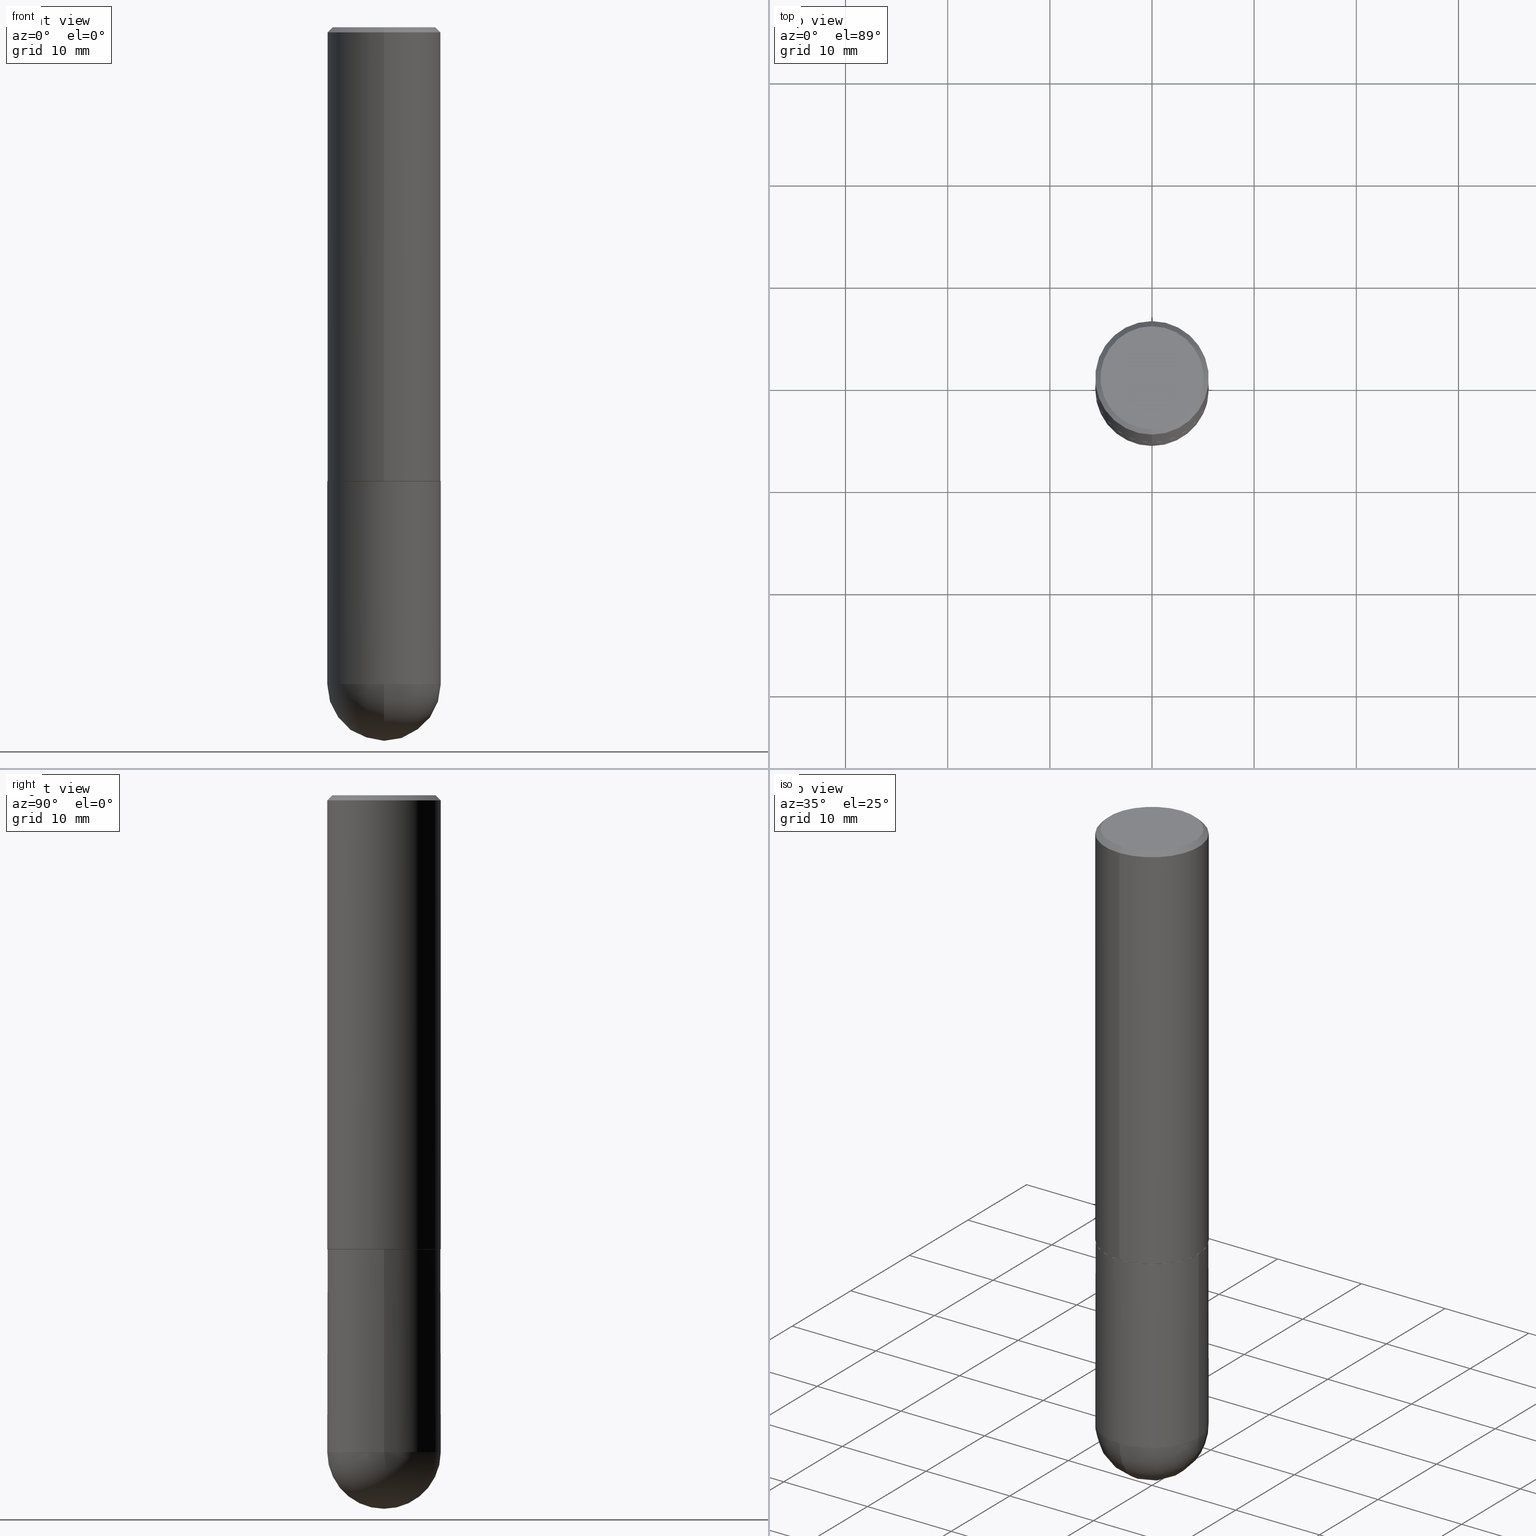
[diagram: canonical four-view strip — front | top / right | iso, engineering-drawing reading convention]
A machine part, canonical four-view strip (front | top / right | iso — engineering-drawing reading convention). The complete STEP part file that produces these views, byte-faithful:
ISO-10303-21;
HEADER;
FILE_DESCRIPTION (( 'STEP AP203' ),
    '1' );
FILE_NAME ('30058.STEP',
    '2024-02-21T16:34:55',
    ( '' ),
    ( '' ),
    'SwSTEP 2.0',
    'SolidWorks 2023',
    '' );
FILE_SCHEMA (( 'CONFIG_CONTROL_DESIGN' ));
ENDSEC;

DATA;
#1 = AXIS2_PLACEMENT_3D ( 'NONE', #151, #113, #218 ) ;
#2 = DIRECTION ( 'NONE',  ( -4.937700262164294818E-15, -0.7071067811865088260, 0.7071067811865862085 ) ) ;
#3 = AXIS2_PLACEMENT_3D ( 'NONE', #373, #24, #26 ) ;
#4 = EDGE_CURVE ( 'NONE', #174, #5, #78, .T. ) ;
#5 = VERTEX_POINT ( 'NONE', #121 ) ;
#6 = ORIENTED_EDGE ( 'NONE', *, *, #230, .T. ) ;
#7 = CIRCLE ( 'NONE', #86, 0.2187500000000002220 ) ;
#8 = APPROVAL_PERSON_ORGANIZATION ( #405, #224, #261 ) ;
#9 = VERTEX_POINT ( 'NONE', #85 ) ;
#10 = DIRECTION ( 'NONE',  ( 1.000000000000000000, -6.982962677686266711E-15, 4.876176775795935232E-29 ) ) ;
#11 = DIRECTION ( 'NONE',  ( -2.445468806185136597E-29, 3.491481338843145583E-15, 1.000000000000000000 ) ) ;
#12 = MECHANICAL_CONTEXT ( 'NONE', #221, 'mechanical' ) ;
#13 = ORIENTED_EDGE ( 'NONE', *, *, #335, .T. ) ;
#14 = DIRECTION ( 'NONE',  ( -6.982962677686265922E-15, -1.000000000000000000, 3.491919642402442968E-15 ) ) ;
#15 = COORDINATED_UNIVERSAL_TIME_OFFSET ( 5, 0, .BEHIND. ) ;
#16 = EDGE_LOOP ( 'NONE', ( #135, #228, #258, #39 ) ) ;
#17 = CIRCLE ( 'NONE', #95, 0.2187500000000000000 ) ;
#18 = DIRECTION ( 'NONE',  ( -2.445468806185136597E-29, 3.491481338843145583E-15, 1.000000000000000000 ) ) ;
#19 = APPROVAL_DATE_TIME ( #297, #224 ) ;
#20 = DIRECTION ( 'NONE',  ( -4.851104656540961908E-15, -0.7071067811865496822, -0.7071067811865453523 ) ) ;
#21 = FACE_OUTER_BOUND ( 'NONE', #133, .T. ) ;
#22 = CC_DESIGN_PERSON_AND_ORGANIZATION_ASSIGNMENT ( #395, #103, ( #266 ) ) ;
#23 = CARTESIAN_POINT ( 'NONE',  ( -1.463339128229030463E-45, 2.089784275229042036E-31, 5.984628769381613964E-17 ) ) ;
#24 = DIRECTION ( 'NONE',  ( 0.000000000000000000, 0.000000000000000000, 1.000000000000000000 ) ) ;
#25 = DIRECTION ( 'NONE',  ( 1.000000000000000000, -6.982962677686265133E-15, 0.000000000000000000 ) ) ;
#26 = DIRECTION ( 'NONE',  ( 1.000000000000000000, 0.000000000000000000, 0.000000000000000000 ) ) ;
#27 = DIRECTION ( 'NONE',  ( -2.445162740445529340E-29, 3.491919642402442968E-15, 1.000000000000000000 ) ) ;
#28 = ORGANIZATION ( 'UNSPECIFIED', 'UNSPECIFIED', '' ) ;
#29 = ORIENTED_EDGE ( 'NONE', *, *, #379, .T. ) ;
#30 = CC_DESIGN_PERSON_AND_ORGANIZATION_ASSIGNMENT ( #197, #171, ( #249 ) ) ;
#31 = CARTESIAN_POINT ( 'NONE',  ( -0.2187499999999999445, 1.554312234475218762E-15, -1.076017050993260482E-29 ) ) ;
#32 = DIRECTION ( 'NONE',  ( -1.000000000000000000, 7.105427357601001070E-15, -4.926315508542082329E-29 ) ) ;
#33 = AXIS2_PLACEMENT_3D ( 'NONE', #372, #181, #14 ) ;
#34 = ADVANCED_FACE ( 'NONE', ( #278 ), #156, .T. ) ;
#35 = AXIS2_PLACEMENT_3D ( 'NONE', #412, #312, #352 ) ;
#36 = AXIS2_PLACEMENT_3D ( 'NONE', #304, #332, #207 ) ;
#37 = EDGE_CURVE ( 'NONE', #9, #331, #256, .T. ) ;
#38 = ORIENTED_EDGE ( 'NONE', *, *, #63, .F. ) ;
#39 = ORIENTED_EDGE ( 'NONE', *, *, #98, .F. ) ;
#40 = AXIS2_PLACEMENT_3D ( 'NONE', #273, #260, #376 ) ;
#41 = CIRCLE ( 'NONE', #377, 0.2187499999999999445 ) ;
#42 = CARTESIAN_POINT ( 'NONE',  ( 0.2187499999999999445, -1.527523085743870449E-15, 1.066663669705360604E-29 ) ) ;
#43 = ORIENTED_EDGE ( 'NONE', *, *, #180, .T. ) ;
#44 = DIRECTION ( 'NONE',  ( 2.445162740445529340E-29, -3.491919642402442968E-15, -1.000000000000000000 ) ) ;
#45 = CARTESIAN_POINT ( 'NONE',  ( 1.547206807117660550E-15, 0.2177499999999938651, -1.750000000000001110 ) ) ;
#46 = APPLICATION_PROTOCOL_DEFINITION ( 'international standard', 'config_control_design', 1994, #221 ) ;
#47 = ORIENTED_EDGE ( 'NONE', *, *, #149, .T. ) ;
#48 = FACE_OUTER_BOUND ( 'NONE', #284, .T. ) ;
#49 = ORIENTED_EDGE ( 'NONE', *, *, #157, .F. ) ;
#50 = CIRCLE ( 'NONE', #92, 0.1987499999999999267 ) ;
#51 = LINE ( 'NONE', #42, #129 ) ;
#52 = DIRECTION ( 'NONE',  ( -2.445468806185136597E-29, 3.491481338843145583E-15, 1.000000000000000000 ) ) ;
#53 =( LENGTH_UNIT ( ) NAMED_UNIT ( * ) SI_UNIT ( $, .METRE. ) );
#54 = CYLINDRICAL_SURFACE ( 'NONE', #364, 0.2187499999999999445 ) ;
#55 = CYLINDRICAL_SURFACE ( 'NONE', #117, 0.2187500000000001388 ) ;
#56 = FACE_OUTER_BOUND ( 'NONE', #367, .T. ) ;
#57 = CARTESIAN_POINT ( 'NONE',  ( -1.527523085743871435E-15, -0.2187500000000001388, 7.638574217755348183E-16 ) ) ;
#58 = VERTEX_POINT ( 'NONE', #349 ) ;
#59 = ADVANCED_FACE ( 'NONE', ( #351 ), #409, .T. ) ;
#60 = ADVANCED_FACE ( 'NONE', ( #247 ), #265, .T. ) ;
#61 = AXIS2_PLACEMENT_3D ( 'NONE', #184, #248, #311 ) ;
#62 = LOCAL_TIME ( 11, 34, 55.00000000000000000, #366 ) ;
#63 = EDGE_CURVE ( 'NONE', #58, #5, #384, .T. ) ;
#64 = VECTOR ( 'NONE', #20, 39.37007874015748143 ) ;
#65 = ORIENTED_EDGE ( 'NONE', *, *, #168, .T. ) ;
#66 = ORIENTED_EDGE ( 'NONE', *, *, #168, .F. ) ;
#67 = VERTEX_POINT ( 'NONE', #240 ) ;
#68 = FACE_OUTER_BOUND ( 'NONE', #393, .T. ) ;
#69 = APPLICATION_PROTOCOL_DEFINITION ( 'international standard', 'config_control_design', 1994, #353 ) ;
#70 = EDGE_LOOP ( 'NONE', ( #231, #6 ) ) ;
#71 = AXIS2_PLACEMENT_3D ( 'NONE', #195, #11, #213 ) ;
#72 = PLANE ( 'NONE',  #317 ) ;
#73 = ORIENTED_EDGE ( 'NONE', *, *, #206, .F. ) ;
#74 = DIRECTION ( 'NONE',  ( 2.438088387897960049E-29, -3.491481338843145188E-15, -1.000000000000000000 ) ) ;
#75 = COORDINATED_UNIVERSAL_TIME_OFFSET ( 5, 0, .BEHIND. ) ;
#76 = ORIENTED_EDGE ( 'NONE', *, *, #37, .F. ) ;
#77 = FACE_OUTER_BOUND ( 'NONE', #371, .T. ) ;
#78 = CIRCLE ( 'NONE', #211, 0.2187500000000000278 ) ;
#79 = CARTESIAN_POINT ( 'NONE',  ( 4.279034795779677116E-29, -6.110859374204276180E-15, -1.750000000000000222 ) ) ;
#80 = CONICAL_SURFACE ( 'NONE', #132, 0.2187500000000000278, 0.7853981633974479459 ) ;
#81 = DIRECTION ( 'NONE',  ( 1.000000000000000000, -6.982962677686267499E-15, 0.000000000000000000 ) ) ;
#82 = DATE_AND_TIME ( #137, #131 ) ;
#83 = LINE ( 'NONE', #31, #321 ) ;
#84 = CARTESIAN_POINT ( 'NONE',  ( 1.457693458967008136E-15, 0.1987499999999999267, -6.341727412336692065E-16 ) ) ;
#85 = CARTESIAN_POINT ( 'NONE',  ( 1.550759520796462040E-15, 0.2177499999999938651, -1.750000000000001110 ) ) ;
#86 = AXIS2_PLACEMENT_3D ( 'NONE', #314, #275, #187 ) ;
#87 = LOCAL_TIME ( 11, 34, 55.00000000000000000, #75 ) ;
#88 = DIMENSIONAL_EXPONENTS ( 1.000000000000000000, 0.000000000000000000, 0.000000000000000000, 0.000000000000000000, 0.000000000000000000, 0.000000000000000000, 0.000000000000000000 ) ;
#89 = SHAPE_DEFINITION_REPRESENTATION ( #119, #285 ) ;
#90 = EDGE_CURVE ( 'NONE', #91, #174, #145, .T. ) ;
#91 = VERTEX_POINT ( 'NONE', #272 ) ;
#92 = AXIS2_PLACEMENT_3D ( 'NONE', #23, #369, #229 ) ;
#93 = CIRCLE ( 'NONE', #33, 0.1987499999999999267 ) ;
#94 = ADVANCED_FACE ( 'NONE', ( #402 ), #179, .T. ) ;
#95 = AXIS2_PLACEMENT_3D ( 'NONE', #329, #177, #143 ) ;
#96 = ORIENTED_EDGE ( 'NONE', *, *, #335, .F. ) ;
#97 = VERTEX_POINT ( 'NONE', #374 ) ;
#98 = EDGE_CURVE ( 'NONE', #396, #5, #120, .T. ) ;
#99 = DIRECTION ( 'NONE',  ( -2.445162740445529340E-29, 3.491919642402442968E-15, 1.000000000000000000 ) ) ;
#100 = ORIENTED_EDGE ( 'NONE', *, *, #403, .F. ) ;
#101 = CARTESIAN_POINT ( 'NONE',  ( 0.2187500000000000000, -7.637615428719375514E-15, -1.750000000000000000 ) ) ;
#102 = CARTESIAN_POINT ( 'NONE',  ( 4.890325480891071152E-31, -6.983839284804902847E-17, -0.02000000000000005246 ) ) ;
#103 = PERSON_AND_ORGANIZATION_ROLE ( 'classification_officer' ) ;
#104 = ORIENTED_EDGE ( 'NONE', *, *, #63, .T. ) ;
#105 = AXIS2_PLACEMENT_3D ( 'NONE', #315, #32, #158 ) ;
#106 = CONICAL_SURFACE ( 'NONE', #318, 0.2177499999999999991, 0.7853981633973970977 ) ;
#107 = PRODUCT_RELATED_PRODUCT_CATEGORY ( 'detail', '', ( #182 ) ) ;
#108 = DIRECTION ( 'NONE',  ( 5.024295867787803643E-15, 0.7071067811865135999, 0.7071067811865812125 ) ) ;
#109 = APPROVAL_STATUS ( 'not_yet_approved' ) ;
#110 = EDGE_CURVE ( 'NONE', #254, #268, #301, .T. ) ;
#111 = ORIENTED_EDGE ( 'NONE', *, *, #269, .T. ) ;
#112 = CARTESIAN_POINT ( 'NONE',  ( 6.190092915656127011E-29, -8.837812138946710888E-15, -2.531250000000000000 ) ) ;
#113 = DIRECTION ( 'NONE',  ( -1.000000000000000000, 6.982962677686265922E-15, -4.883557194083112340E-29 ) ) ;
#114 = CARTESIAN_POINT ( 'NONE',  ( 0.2187499999999999445, -9.001475326704980594E-15, -2.531250000000000000 ) ) ;
#115 = APPROVAL_STATUS ( 'not_yet_approved' ) ;
#116 = DIRECTION ( 'NONE',  ( -2.445468806185136877E-29, 3.491481338843145188E-15, 1.000000000000000000 ) ) ;
#117 = AXIS2_PLACEMENT_3D ( 'NONE', #348, #380, #148 ) ;
#118 = APPROVAL_PERSON_ORGANIZATION ( #144, #246, #150 ) ;
#119 = PRODUCT_DEFINITION_SHAPE ( 'NONE', 'NONE',  #249 ) ;
#120 = LINE ( 'NONE', #57, #251 ) ;
#121 = CARTESIAN_POINT ( 'NONE',  ( -1.500733937012521938E-15, -0.2187500000000000833, -0.01999999999999928571 ) ) ;
#122 = DIRECTION ( 'NONE',  ( -6.982962677686265922E-15, -1.000000000000000000, 3.492862791899307676E-15 ) ) ;
#123 = CARTESIAN_POINT ( 'NONE',  ( 4.890325480891071152E-31, -6.983839284804902847E-17, -0.02000000000000005246 ) ) ;
#124 = CIRCLE ( 'NONE', #328, 0.2177499999999999991 ) ;
#125 = ADVANCED_FACE ( 'NONE', ( #77 ), #55, .T. ) ;
#126 = CIRCLE ( 'NONE', #175, 0.2187500000000000000 ) ;
#127 = LOCAL_TIME ( 11, 34, 55.00000000000000000, #201 ) ;
#128 = VERTEX_POINT ( 'NONE', #84 ) ;
#129 = VECTOR ( 'NONE', #167, 39.37007874015748143 ) ;
#130 = ADVANCED_FACE ( 'NONE', ( #56 ), #385, .T. ) ;
#131 = LOCAL_TIME ( 11, 34, 55.00000000000000000, #293 ) ;
#132 = AXIS2_PLACEMENT_3D ( 'NONE', #123, #44, #166 ) ;
#133 = EDGE_LOOP ( 'NONE', ( #400, #194, #73, #66 ) ) ;
#134 = CYLINDRICAL_SURFACE ( 'NONE', #220, 0.2187499999999999445 ) ;
#135 = ORIENTED_EDGE ( 'NONE', *, *, #206, .T. ) ;
#136 = DIRECTION ( 'NONE',  ( 1.000000000000000000, -6.982962677686266711E-15, 4.876176775795935232E-29 ) ) ;
#137 = CALENDAR_DATE ( 2024, 21, 2 ) ;
#138 = EDGE_LOOP ( 'NONE', ( #319, #104, #198, #358 ) ) ;
#139 = CC_DESIGN_PERSON_AND_ORGANIZATION_ASSIGNMENT ( #242, #378, ( #390 ) ) ;
#140 = DATE_AND_TIME ( #334, #62 ) ;
#141 = ORIENTED_EDGE ( 'NONE', *, *, #316, .F. ) ;
#142 = APPROVAL_PERSON_ORGANIZATION ( #399, #382, #370 ) ;
#143 = DIRECTION ( 'NONE',  ( 1.000000000000000000, -6.982962677686267499E-15, 0.000000000000000000 ) ) ;
#144 = PERSON_AND_ORGANIZATION ( #159, #28 ) ;
#145 = LINE ( 'NONE', #243, #233 ) ;
#146 = DIRECTION ( 'NONE',  ( 1.000000000000000000, -6.982962677686265922E-15, 4.883557194083112340E-29 ) ) ;
#147 = CARTESIAN_POINT ( 'NONE',  ( 1.387863832190144838E-15, 0.1987499999999999267, -6.640958850805772455E-16 ) ) ;
#148 = DIRECTION ( 'NONE',  ( -6.982962677686265133E-15, -1.000000000000000000, 3.491919642402442574E-15 ) ) ;
#149 = EDGE_CURVE ( 'NONE', #91, #396, #7, .T. ) ;
#150 = APPROVAL_ROLE ( '' ) ;
#151 = CARTESIAN_POINT ( 'NONE',  ( 5.858973137742240763E-29, -9.311994507086761184E-15, -2.531250000000000000 ) ) ;
#152 = CLOSED_SHELL ( 'NONE', ( #359, #59, #94, #324, #286 ) ) ;
#153 = VECTOR ( 'NONE', #340, 39.37007874015748143 ) ;
#154 = CARTESIAN_POINT ( 'NONE',  ( 4.890325480891071152E-31, -6.983839284804902847E-17, -0.02000000000000005246 ) ) ;
#155 = LINE ( 'NONE', #45, #408 ) ;
#156 = CYLINDRICAL_SURFACE ( 'NONE', #326, 0.2187500000000001388 ) ;
#157 = EDGE_CURVE ( 'NONE', #254, #257, #83, .T. ) ;
#158 = DIRECTION ( 'NONE',  ( -7.105427357601001070E-15, -1.000000000000000000, 0.000000000000000000 ) ) ;
#159 = PERSON ( 'UNSPECIFIED', 'UNSPECIFIED', 'UNSPECIFIED', ('UNSPECIFIED'), ('UNSPECIFIED'), ('UNSPECIFIED') ) ;
#160 = ORIENTED_EDGE ( 'NONE', *, *, #365, .F. ) ;
#161 = CIRCLE ( 'NONE', #219, 0.2187500000000000278 ) ;
#162 = ORIENTED_EDGE ( 'NONE', *, *, #4, .T. ) ;
#163 = VECTOR ( 'NONE', #2, 39.37007874015748143 ) ;
#164 = EDGE_LOOP ( 'NONE', ( #169, #29, #336, #96 ) ) ;
#165 = MANIFOLD_SOLID_BREP ( 'Body-Move/Copy2[2]', #389 ) ;
#166 = DIRECTION ( 'NONE',  ( 6.982962677686265922E-15, 1.000000000000000000, -3.492862791899307676E-15 ) ) ;
#167 = DIRECTION ( 'NONE',  ( -2.445468806185136877E-29, 3.491481338843145188E-15, 1.000000000000000000 ) ) ;
#168 = EDGE_CURVE ( 'NONE', #331, #396, #215, .T. ) ;
#169 = ORIENTED_EDGE ( 'NONE', *, *, #180, .F. ) ;
#170 = DIRECTION ( 'NONE',  ( -2.445468806185136597E-29, 3.491481338843145583E-15, 1.000000000000000000 ) ) ;
#171 = PERSON_AND_ORGANIZATION_ROLE ( 'creator' ) ;
#172 = ORIENTED_EDGE ( 'NONE', *, *, #110, .F. ) ;
#173 =( NAMED_UNIT ( * ) PLANE_ANGLE_UNIT ( ) SI_UNIT ( $, .RADIAN. ) );
#174 = VERTEX_POINT ( 'NONE', #190 ) ;
#175 = AXIS2_PLACEMENT_3D ( 'NONE', #296, #170, #81 ) ;
#176 = DIRECTION ( 'NONE',  ( -2.445468806185136597E-29, 3.491481338843145583E-15, 1.000000000000000000 ) ) ;
#177 = DIRECTION ( 'NONE',  ( -2.445468806185136597E-29, 3.491481338843145583E-15, 1.000000000000000000 ) ) ;
#178 = PERSON_AND_ORGANIZATION_ROLE ( 'design_owner' ) ;
#179 = SPHERICAL_SURFACE ( 'NONE', #1, 0.2187500000000001943 ) ;
#180 = EDGE_CURVE ( 'NONE', #97, #268, #383, .T. ) ;
#181 = DIRECTION ( 'NONE',  ( -2.445162740445529340E-29, 3.491919642402442968E-15, 1.000000000000000000 ) ) ;
#182 = PRODUCT ( '30058', '30058', '', ( #12 ) ) ;
#183 = DATE_TIME_ROLE ( 'creation_date' ) ;
#184 = CARTESIAN_POINT ( 'NONE',  ( 4.890325480891071152E-31, -6.983839284804902847E-17, -0.02000000000000005246 ) ) ;
#185 = CARTESIAN_POINT ( 'NONE',  ( 0.000000000000000000, 0.000000000000000000, 0.000000000000000000 ) ) ;
#186 =( GEOMETRIC_REPRESENTATION_CONTEXT ( 3 ) GLOBAL_UNCERTAINTY_ASSIGNED_CONTEXT ( ( #360 ) ) GLOBAL_UNIT_ASSIGNED_CONTEXT ( ( #214, #173, #209 ) ) REPRESENTATION_CONTEXT ( 'NONE', 'WORKASPACE' ) );
#187 = DIRECTION ( 'NONE',  ( -6.982962677686265922E-15, -1.000000000000000000, 3.746534391310985612E-15 ) ) ;
#188 = CC_DESIGN_DATE_AND_TIME_ASSIGNMENT ( #274, #183, ( #249 ) ) ;
#189 = EDGE_CURVE ( 'NONE', #9, #91, #155, .T. ) ;
#190 = CARTESIAN_POINT ( 'NONE',  ( 1.527523085743871237E-15, 0.2187499999999999445, -0.02000000000000081574 ) ) ;
#191 = CIRCLE ( 'NONE', #36, 0.2187499999999999445 ) ;
#192 = ORIENTED_EDGE ( 'NONE', *, *, #212, .F. ) ;
#193 = ORIENTED_EDGE ( 'NONE', *, *, #403, .T. ) ;
#194 = ORIENTED_EDGE ( 'NONE', *, *, #189, .T. ) ;
#195 = CARTESIAN_POINT ( 'NONE',  ( 6.190092915656127011E-29, -8.837812138946710888E-15, -2.531250000000000000 ) ) ;
#196 = AXIS2_PLACEMENT_3D ( 'NONE', #341, #99, #362 ) ;
#197 = PERSON_AND_ORGANIZATION ( #159, #28 ) ;
#198 = ORIENTED_EDGE ( 'NONE', *, *, #290, .T. ) ;
#199 = DIRECTION ( 'NONE',  ( 6.982962677686265922E-15, 1.000000000000000000, 0.000000000000000000 ) ) ;
#200 = DIRECTION ( 'NONE',  ( -2.445468806185136597E-29, 3.491481338843145583E-15, 1.000000000000000000 ) ) ;
#201 = COORDINATED_UNIVERSAL_TIME_OFFSET ( 5, 0, .BEHIND. ) ;
#202 = ORIENTED_EDGE ( 'NONE', *, *, #379, .F. ) ;
#203 = DIRECTION ( 'NONE',  ( -1.000000000000000000, 6.982962677686265922E-15, -4.876176775795935793E-29 ) ) ;
#204 = CALENDAR_DATE ( 2024, 21, 2 ) ;
#205 = ORIENTED_EDGE ( 'NONE', *, *, #110, .T. ) ;
#206 = EDGE_CURVE ( 'NONE', #396, #91, #223, .T. ) ;
#207 = DIRECTION ( 'NONE',  ( 1.000000000000000000, -6.982962677686265133E-15, 0.000000000000000000 ) ) ;
#208 = DIRECTION ( 'NONE',  ( -6.982962677686265922E-15, -1.000000000000000000, 3.492862791899307676E-15 ) ) ;
#209 =( NAMED_UNIT ( * ) SI_UNIT ( $, .STERADIAN. ) SOLID_ANGLE_UNIT ( ) );
#210 = CARTESIAN_POINT ( 'NONE',  ( 4.279034795779677116E-29, -6.110859374204276180E-15, -1.750000000000000222 ) ) ;
#211 = AXIS2_PLACEMENT_3D ( 'NONE', #154, #27, #122 ) ;
#212 = EDGE_CURVE ( 'NONE', #257, #391, #17, .T. ) ;
#213 = DIRECTION ( 'NONE',  ( 1.000000000000000000, -6.982962677686265133E-15, 0.000000000000000000 ) ) ;
#214 =( CONVERSION_BASED_UNIT ( 'INCH', #238 ) LENGTH_UNIT ( ) NAMED_UNIT ( #88 ) );
#215 = LINE ( 'NONE', #281, #163 ) ;
#216 = CARTESIAN_POINT ( 'NONE',  ( 6.190092915656127011E-29, -8.837812138946710888E-15, -2.531250000000000000 ) ) ;
#217 = CC_DESIGN_PERSON_AND_ORGANIZATION_ASSIGNMENT ( #347, #234, ( #390 ) ) ;
#218 = DIRECTION ( 'NONE',  ( 6.982962677686265922E-15, 1.000000000000000000, -2.497689594207324005E-15 ) ) ;
#219 = AXIS2_PLACEMENT_3D ( 'NONE', #102, #333, #208 ) ;
#220 = AXIS2_PLACEMENT_3D ( 'NONE', #295, #176, #10 ) ;
#221 = APPLICATION_CONTEXT ( 'configuration controlled 3d designs of mechanical parts and assemblies' ) ;
#222 = DIRECTION ( 'NONE',  ( -2.445162740445529340E-29, 3.491919642402442968E-15, 1.000000000000000000 ) ) ;
#223 = CIRCLE ( 'NONE', #40, 0.2187500000000002220 ) ;
#224 = APPROVAL ( #115, 'UNSPECIFIED' ) ;
#225 = AXIS2_PLACEMENT_3D ( 'NONE', #210, #381, #344 ) ;
#226 = AXIS2_PLACEMENT_3D ( 'NONE', #398, #74, #203 ) ;
#227 = VERTEX_POINT ( 'NONE', #114 ) ;
#228 = ORIENTED_EDGE ( 'NONE', *, *, #90, .T. ) ;
#229 = DIRECTION ( 'NONE',  ( -6.982962677686265922E-15, -1.000000000000000000, 3.491919642402442968E-15 ) ) ;
#230 = EDGE_CURVE ( 'NONE', #58, #128, #50, .T. ) ;
#231 = ORIENTED_EDGE ( 'NONE', *, *, #316, .T. ) ;
#232 = CARTESIAN_POINT ( 'NONE',  ( -1.554312234475159203E-15, -0.2187500000000091871, -2.531249999999999556 ) ) ;
#233 = VECTOR ( 'NONE', #407, 39.37007874015748143 ) ;
#234 = PERSON_AND_ORGANIZATION_ROLE ( 'creator' ) ;
#235 = ORIENTED_EDGE ( 'NONE', *, *, #299, .T. ) ;
#236 = ORIENTED_EDGE ( 'NONE', *, *, #282, .F. ) ;
#237 = DIRECTION ( 'NONE',  ( 1.000000000000000000, -6.982962677686265133E-15, 0.000000000000000000 ) ) ;
#238 = LENGTH_MEASURE_WITH_UNIT ( LENGTH_MEASURE( 0.02539999999999999897 ), #53 );
#239 = CC_DESIGN_DATE_AND_TIME_ASSIGNMENT ( #140, #271, ( #266 ) ) ;
#240 = CARTESIAN_POINT ( 'NONE',  ( 1.527523085743931191E-15, 0.2187499999999910072, -2.531250000000000444 ) ) ;
#241 = DIRECTION ( 'NONE',  ( 2.445162740445529340E-29, -3.491919642402442968E-15, -1.000000000000000000 ) ) ;
#242 = PERSON_AND_ORGANIZATION ( #159, #28 ) ;
#243 = CARTESIAN_POINT ( 'NONE',  ( 1.554312234475219748E-15, 0.2187500000000001388, -7.638574217755348183E-16 ) ) ;
#244 = CC_DESIGN_APPROVAL ( #224, ( #390 ) ) ;
#245 = DIRECTION ( 'NONE',  ( -2.445162740445529340E-29, 3.491919642402442968E-15, 1.000000000000000000 ) ) ;
#246 = APPROVAL ( #267, 'UNSPECIFIED' ) ;
#247 = FACE_OUTER_BOUND ( 'NONE', #138, .T. ) ;
#248 = DIRECTION ( 'NONE',  ( 2.445162740445529340E-29, -3.491919642402442968E-15, -1.000000000000000000 ) ) ;
#249 = PRODUCT_DEFINITION ( 'UNKNOWN', '', #390, #387 ) ;
#250 = ORIENTED_EDGE ( 'NONE', *, *, #90, .F. ) ;
#251 = VECTOR ( 'NONE', #245, 39.37007874015748143 ) ;
#252 = CC_DESIGN_APPROVAL ( #382, ( #266 ) ) ;
#253 = ADVANCED_FACE ( 'NONE', ( #48 ), #392, .F. ) ;
#254 = VERTEX_POINT ( 'NONE', #270 ) ;
#255 = CIRCLE ( 'NONE', #71, 0.2187499999999999445 ) ;
#256 = CIRCLE ( 'NONE', #375, 0.2177499999999999991 ) ;
#257 = VERTEX_POINT ( 'NONE', #404 ) ;
#258 = ORIENTED_EDGE ( 'NONE', *, *, #290, .F. ) ;
#259 = DIRECTION ( 'NONE',  ( -2.445162740445529340E-29, 3.491919642402442968E-15, 1.000000000000000000 ) ) ;
#260 = DIRECTION ( 'NONE',  ( -2.445162740445529340E-29, 3.491919642402442968E-15, 1.000000000000000000 ) ) ;
#261 = APPROVAL_ROLE ( '' ) ;
#262 = EDGE_LOOP ( 'NONE', ( #202, #43, #172, #100 ) ) ;
#263 = DIRECTION ( 'NONE',  ( -6.982962677686265922E-15, -1.000000000000000000, 3.763740060157423393E-15 ) ) ;
#264 = FACE_OUTER_BOUND ( 'NONE', #356, .T. ) ;
#265 = CONICAL_SURFACE ( 'NONE', #61, 0.2187500000000000278, 0.7853981633974479459 ) ;
#266 = SECURITY_CLASSIFICATION ( '', '', #310 ) ;
#267 = APPROVAL_STATUS ( 'not_yet_approved' ) ;
#268 = VERTEX_POINT ( 'NONE', #232 ) ;
#269 = EDGE_CURVE ( 'NONE', #227, #67, #255, .T. ) ;
#270 = CARTESIAN_POINT ( 'NONE',  ( -0.2187499999999999445, -5.919640006485891384E-15, -2.531250000000000000 ) ) ;
#271 = DATE_TIME_ROLE ( 'classification_date' ) ;
#272 = CARTESIAN_POINT ( 'NONE',  ( 1.554312234475241639E-15, 0.2187499999999941158, -1.749000000000000554 ) ) ;
#273 = CARTESIAN_POINT ( 'NONE',  ( 4.276589633039230650E-29, -6.107367454561872318E-15, -1.748999999999999888 ) ) ;
#274 = DATE_AND_TIME ( #330, #127 ) ;
#275 = DIRECTION ( 'NONE',  ( -2.445162740445529340E-29, 3.491919642402442968E-15, 1.000000000000000000 ) ) ;
#276 = CARTESIAN_POINT ( 'NONE',  ( 4.279034795779677116E-29, -6.110859374204276180E-15, -1.750000000000000222 ) ) ;
#277 = CIRCLE ( 'NONE', #287, 0.2187500000000001943 ) ;
#278 = FACE_OUTER_BOUND ( 'NONE', #16, .T. ) ;
#279 = DIRECTION ( 'NONE',  ( -6.982962677686265133E-15, -1.000000000000000000, 3.491919642402442574E-15 ) ) ;
#280 = ADVANCED_FACE ( 'NONE', ( #309 ), #72, .F. ) ;
#281 = CARTESIAN_POINT ( 'NONE',  ( -1.520540123066141639E-15, -0.2177500000000061053, -1.749999999999999334 ) ) ;
#282 = EDGE_CURVE ( 'NONE', #227, #391, #51, .T. ) ;
#283 = APPROVAL_DATE_TIME ( #338, #382 ) ;
#284 = EDGE_LOOP ( 'NONE', ( #160, #76 ) ) ;
#285 = ADVANCED_BREP_SHAPE_REPRESENTATION ( '30058', ( #313, #165, #3 ), #186 ) ;
#286 = ADVANCED_FACE ( 'NONE', ( #346 ), #54, .T. ) ;
#287 = AXIS2_PLACEMENT_3D ( 'NONE', #394, #146, #199 ) ;
#288 = ORIENTED_EDGE ( 'NONE', *, *, #149, .F. ) ;
#289 = CC_DESIGN_SECURITY_CLASSIFICATION ( #266, ( #390 ) ) ;
#290 = EDGE_CURVE ( 'NONE', #5, #174, #161, .T. ) ;
#291 = ORIENTED_EDGE ( 'NONE', *, *, #282, .T. ) ;
#292 = CARTESIAN_POINT ( 'NONE',  ( 0.000000000000000000, 0.000000000000000000, 0.000000000000000000 ) ) ;
#293 = COORDINATED_UNIVERSAL_TIME_OFFSET ( 5, 0, .BEHIND. ) ;
#294 = ORIENTED_EDGE ( 'NONE', *, *, #4, .F. ) ;
#295 = CARTESIAN_POINT ( 'NONE',  ( 0.000000000000000000, 0.000000000000000000, 0.000000000000000000 ) ) ;
#296 = CARTESIAN_POINT ( 'NONE',  ( 4.279570410823988484E-29, -6.110092342975504671E-15, -1.750000000000000000 ) ) ;
#297 = DATE_AND_TIME ( #302, #322 ) ;
#298 = ORIENTED_EDGE ( 'NONE', *, *, #98, .T. ) ;
#299 = EDGE_CURVE ( 'NONE', #391, #257, #126, .T. ) ;
#300 = CARTESIAN_POINT ( 'NONE',  ( 1.527523085743871237E-15, 0.2187499999999999445, -0.02000000000000081574 ) ) ;
#301 = CIRCLE ( 'NONE', #357, 0.2187499999999999445 ) ;
#302 = CALENDAR_DATE ( 2024, 21, 2 ) ;
#303 = CARTESIAN_POINT ( 'NONE',  ( -1.500733937012521938E-15, -0.2187500000000000833, -0.01999999999999928571 ) ) ;
#304 = CARTESIAN_POINT ( 'NONE',  ( 6.190092915656127011E-29, -8.837812138946710888E-15, -2.531250000000000000 ) ) ;
#305 = DIRECTION ( 'NONE',  ( 6.982962677686265922E-15, 1.000000000000000000, -3.491919642402442968E-15 ) ) ;
#306 = APPROVAL_DATE_TIME ( #82, #246 ) ;
#307 = DIRECTION ( 'NONE',  ( -6.982962677686265922E-15, -1.000000000000000000, 3.763740060157423393E-15 ) ) ;
#308 = DIRECTION ( 'NONE',  ( -2.445162740445529340E-29, 3.491919642402442968E-15, 1.000000000000000000 ) ) ;
#309 = FACE_OUTER_BOUND ( 'NONE', #70, .T. ) ;
#310 = SECURITY_CLASSIFICATION_LEVEL ( 'unclassified' ) ;
#311 = DIRECTION ( 'NONE',  ( 6.982962677686265922E-15, 1.000000000000000000, -3.492862791899307676E-15 ) ) ;
#312 = DIRECTION ( 'NONE',  ( -1.000000000000000000, 6.982962677686265922E-15, -4.883557194083112340E-29 ) ) ;
#313 = MANIFOLD_SOLID_BREP ( 'Body-Move/Copy2[1]', #152 ) ;
#314 = CARTESIAN_POINT ( 'NONE',  ( 4.276589633039230650E-29, -6.107367454561872318E-15, -1.748999999999999888 ) ) ;
#315 = CARTESIAN_POINT ( 'NONE',  ( 5.858973137742240763E-29, -9.311994507086761184E-15, -2.531250000000000000 ) ) ;
#316 = EDGE_CURVE ( 'NONE', #128, #58, #93, .T. ) ;
#317 = AXIS2_PLACEMENT_3D ( 'NONE', #147, #241, #305 ) ;
#318 = AXIS2_PLACEMENT_3D ( 'NONE', #79, #308, #345 ) ;
#319 = ORIENTED_EDGE ( 'NONE', *, *, #230, .F. ) ;
#320 = CC_DESIGN_PERSON_AND_ORGANIZATION_ASSIGNMENT ( #343, #178, ( #182 ) ) ;
#321 = VECTOR ( 'NONE', #116, 39.37007874015748143 ) ;
#322 = LOCAL_TIME ( 11, 34, 55.00000000000000000, #15 ) ;
#323 = ORIENTED_EDGE ( 'NONE', *, *, #37, .T. ) ;
#324 = ADVANCED_FACE ( 'NONE', ( #264 ), #401, .F. ) ;
#325 = ORIENTED_EDGE ( 'NONE', *, *, #212, .T. ) ;
#326 = AXIS2_PLACEMENT_3D ( 'NONE', #185, #222, #279 ) ;
#327 = CARTESIAN_POINT ( 'NONE',  ( 4.279034795779677116E-29, -6.110859374204276180E-15, -1.750000000000000222 ) ) ;
#328 = AXIS2_PLACEMENT_3D ( 'NONE', #327, #259, #263 ) ;
#329 = CARTESIAN_POINT ( 'NONE',  ( 4.279570410823988484E-29, -6.110092342975504671E-15, -1.750000000000000000 ) ) ;
#330 = CALENDAR_DATE ( 2024, 21, 2 ) ;
#331 = VERTEX_POINT ( 'NONE', #337 ) ;
#332 = DIRECTION ( 'NONE',  ( -2.445468806185136597E-29, 3.491481338843145583E-15, 1.000000000000000000 ) ) ;
#333 = DIRECTION ( 'NONE',  ( -2.445162740445529340E-29, 3.491919642402442968E-15, 1.000000000000000000 ) ) ;
#334 = CALENDAR_DATE ( 2024, 21, 2 ) ;
#335 = EDGE_CURVE ( 'NONE', #268, #227, #41, .T. ) ;
#336 = ORIENTED_EDGE ( 'NONE', *, *, #269, .F. ) ;
#337 = CARTESIAN_POINT ( 'NONE',  ( -1.520540123066141639E-15, -0.2177500000000061053, -1.749999999999999334 ) ) ;
#338 = DATE_AND_TIME ( #204, #87 ) ;
#339 = EDGE_LOOP ( 'NONE', ( #49, #205, #13, #291, #192 ) ) ;
#340 = DIRECTION ( 'NONE',  ( 4.937700262164545676E-15, 0.7071067811865447972, -0.7071067811865502373 ) ) ;
#341 = CARTESIAN_POINT ( 'NONE',  ( 4.279034795779677116E-29, -6.110859374204276180E-15, -1.750000000000000222 ) ) ;
#342 = CC_DESIGN_APPROVAL ( #246, ( #249 ) ) ;
#343 = PERSON_AND_ORGANIZATION ( #159, #28 ) ;
#344 = DIRECTION ( 'NONE',  ( -6.982962677686265922E-15, -1.000000000000000000, 3.763740060157423393E-15 ) ) ;
#345 = DIRECTION ( 'NONE',  ( -6.982962677686265922E-15, -1.000000000000000000, 3.763740060157423393E-15 ) ) ;
#346 = FACE_OUTER_BOUND ( 'NONE', #339, .T. ) ;
#347 = PERSON_AND_ORGANIZATION ( #159, #28 ) ;
#348 = CARTESIAN_POINT ( 'NONE',  ( 0.000000000000000000, 0.000000000000000000, 0.000000000000000000 ) ) ;
#349 = CARTESIAN_POINT ( 'NONE',  ( -1.432128957034806803E-15, -0.1987499999999999267, 7.538653166213014611E-16 ) ) ;
#350 = FACE_OUTER_BOUND ( 'NONE', #363, .T. ) ;
#351 = FACE_OUTER_BOUND ( 'NONE', #262, .T. ) ;
#352 = DIRECTION ( 'NONE',  ( 6.982962677686265922E-15, 1.000000000000000000, -2.497689594207324005E-15 ) ) ;
#353 = APPLICATION_CONTEXT ( 'configuration controlled 3d designs of mechanical parts and assemblies' ) ;
#354 = ADVANCED_FACE ( 'NONE', ( #350 ), #80, .T. ) ;
#355 = ORIENTED_EDGE ( 'NONE', *, *, #189, .F. ) ;
#356 = EDGE_LOOP ( 'NONE', ( #235, #325 ) ) ;
#357 = AXIS2_PLACEMENT_3D ( 'NONE', #216, #52, #25 ) ;
#358 = ORIENTED_EDGE ( 'NONE', *, *, #406, .F. ) ;
#359 = ADVANCED_FACE ( 'NONE', ( #68 ), #134, .T. ) ;
#360 = UNCERTAINTY_MEASURE_WITH_UNIT (LENGTH_MEASURE( 1.000000000000000082E-05 ), #214, 'distance_accuracy_value', 'NONE');
#361 = ORIENTED_EDGE ( 'NONE', *, *, #406, .T. ) ;
#362 = DIRECTION ( 'NONE',  ( -6.982962677686265922E-15, -1.000000000000000000, 3.491919642402442968E-15 ) ) ;
#363 = EDGE_LOOP ( 'NONE', ( #38, #141, #361, #162 ) ) ;
#364 = AXIS2_PLACEMENT_3D ( 'NONE', #292, #200, #136 ) ;
#365 = EDGE_CURVE ( 'NONE', #331, #9, #124, .T. ) ;
#366 = COORDINATED_UNIVERSAL_TIME_OFFSET ( 5, 0, .BEHIND. ) ;
#367 = EDGE_LOOP ( 'NONE', ( #355, #323, #65, #288 ) ) ;
#368 = LINE ( 'NONE', #300, #153 ) ;
#369 = DIRECTION ( 'NONE',  ( -2.445162740445529340E-29, 3.491919642402442968E-15, 1.000000000000000000 ) ) ;
#370 = APPROVAL_ROLE ( '' ) ;
#371 = EDGE_LOOP ( 'NONE', ( #250, #47, #298, #294 ) ) ;
#372 = CARTESIAN_POINT ( 'NONE',  ( -1.463339128229030463E-45, 2.089784275229042036E-31, 5.984628769381613964E-17 ) ) ;
#373 = CARTESIAN_POINT ( 'NONE',  ( 0.000000000000000000, 0.000000000000000000, 0.000000000000000000 ) ) ;
#374 = CARTESIAN_POINT ( 'NONE',  ( 6.403272820383139972E-29, -1.006236147559302482E-14, -2.750000000000000000 ) ) ;
#375 = AXIS2_PLACEMENT_3D ( 'NONE', #276, #410, #307 ) ;
#376 = DIRECTION ( 'NONE',  ( -6.982962677686265922E-15, -1.000000000000000000, 3.746534391310985612E-15 ) ) ;
#377 = AXIS2_PLACEMENT_3D ( 'NONE', #112, #18, #237 ) ;
#378 = PERSON_AND_ORGANIZATION_ROLE ( 'design_supplier' ) ;
#379 = EDGE_CURVE ( 'NONE', #97, #67, #277, .T. ) ;
#380 = DIRECTION ( 'NONE',  ( -2.445162740445529340E-29, 3.491919642402442968E-15, 1.000000000000000000 ) ) ;
#381 = DIRECTION ( 'NONE',  ( -2.445162740445529340E-29, 3.491919642402442968E-15, 1.000000000000000000 ) ) ;
#382 = APPROVAL ( #109, 'UNSPECIFIED' ) ;
#383 = CIRCLE ( 'NONE', #105, 0.2187500000000001943 ) ;
#384 = LINE ( 'NONE', #303, #64 ) ;
#385 = CONICAL_SURFACE ( 'NONE', #225, 0.2177499999999999991, 0.7853981633973970977 ) ;
#386 = ORIENTED_EDGE ( 'NONE', *, *, #157, .T. ) ;
#387 = DESIGN_CONTEXT ( 'detailed design', #353, 'design' ) ;
#388 = ORIENTED_EDGE ( 'NONE', *, *, #299, .F. ) ;
#389 = CLOSED_SHELL ( 'NONE', ( #411, #34, #60, #354, #125, #130, #253, #280 ) ) ;
#390 = PRODUCT_DEFINITION_FORMATION_WITH_SPECIFIED_SOURCE ( 'ANY', '', #182, .NOT_KNOWN. ) ;
#391 = VERTEX_POINT ( 'NONE', #101 ) ;
#392 = PLANE ( 'NONE',  #196 ) ;
#393 = EDGE_LOOP ( 'NONE', ( #193, #386, #388, #236, #111 ) ) ;
#394 = CARTESIAN_POINT ( 'NONE',  ( 5.858973137742240763E-29, -9.311994507086761184E-15, -2.531250000000000000 ) ) ;
#395 = PERSON_AND_ORGANIZATION ( #159, #28 ) ;
#396 = VERTEX_POINT ( 'NONE', #397 ) ;
#397 = CARTESIAN_POINT ( 'NONE',  ( -1.527523085743829428E-15, -0.2187500000000063283, -1.748999999999999000 ) ) ;
#398 = CARTESIAN_POINT ( 'NONE',  ( 1.527523085743913244E-15, 0.2187499999999938660, -1.750000000000000666 ) ) ;
#399 = PERSON_AND_ORGANIZATION ( #159, #28 ) ;
#400 = ORIENTED_EDGE ( 'NONE', *, *, #365, .T. ) ;
#401 = PLANE ( 'NONE',  #226 ) ;
#402 = FACE_OUTER_BOUND ( 'NONE', #164, .T. ) ;
#403 = EDGE_CURVE ( 'NONE', #67, #254, #191, .T. ) ;
#404 = CARTESIAN_POINT ( 'NONE',  ( -0.2187500000000000000, -5.919640006485889806E-15, -1.750000000000000000 ) ) ;
#405 = PERSON_AND_ORGANIZATION ( #159, #28 ) ;
#406 = EDGE_CURVE ( 'NONE', #128, #174, #368, .T. ) ;
#407 = DIRECTION ( 'NONE',  ( -2.445162740445529340E-29, 3.491919642402442968E-15, 1.000000000000000000 ) ) ;
#408 = VECTOR ( 'NONE', #108, 39.37007874015748854 ) ;
#409 = SPHERICAL_SURFACE ( 'NONE', #35, 0.2187500000000001943 ) ;
#410 = DIRECTION ( 'NONE',  ( -2.445162740445529340E-29, 3.491919642402442968E-15, 1.000000000000000000 ) ) ;
#411 = ADVANCED_FACE ( 'NONE', ( #21 ), #106, .T. ) ;
#412 = CARTESIAN_POINT ( 'NONE',  ( 5.858973137742240763E-29, -9.311994507086761184E-15, -2.531250000000000000 ) ) ;
ENDSEC;
END-ISO-10303-21;
